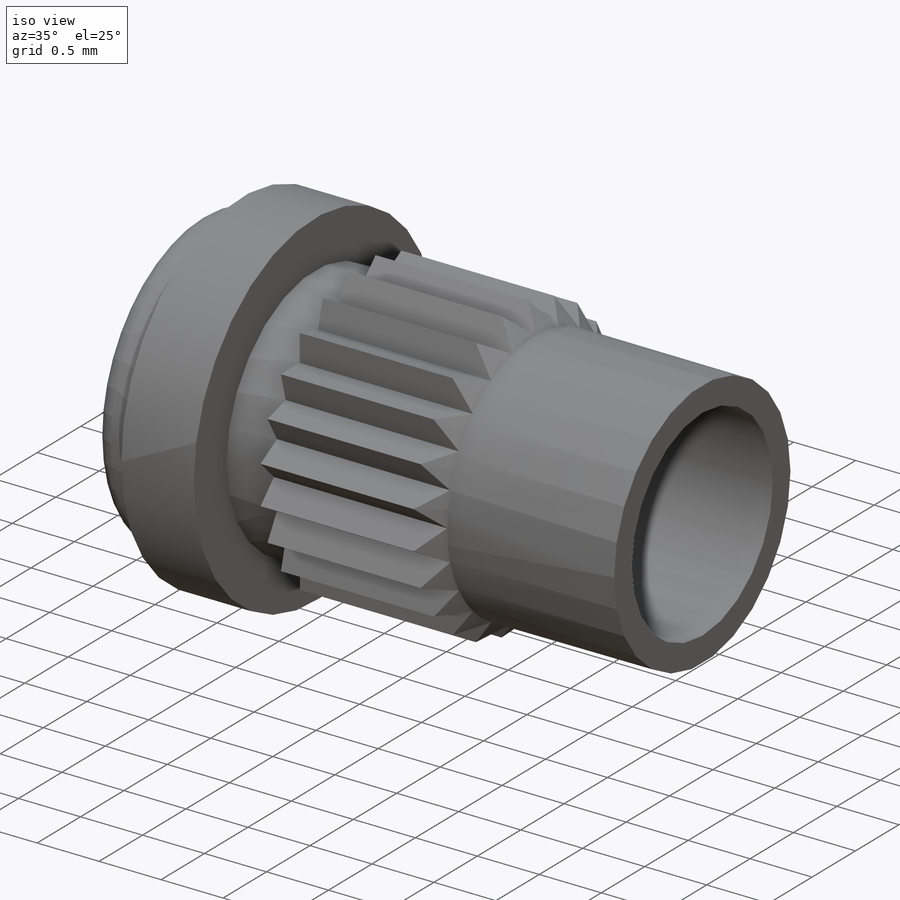
[diagram: iso view]
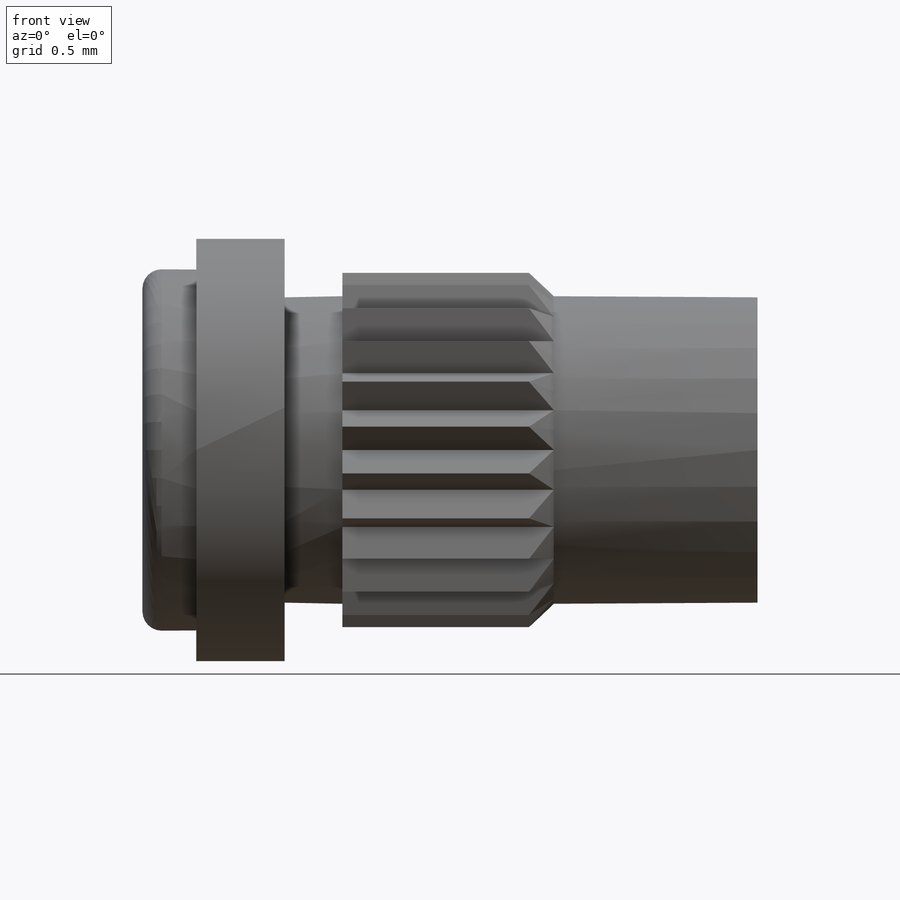
[diagram: front view]
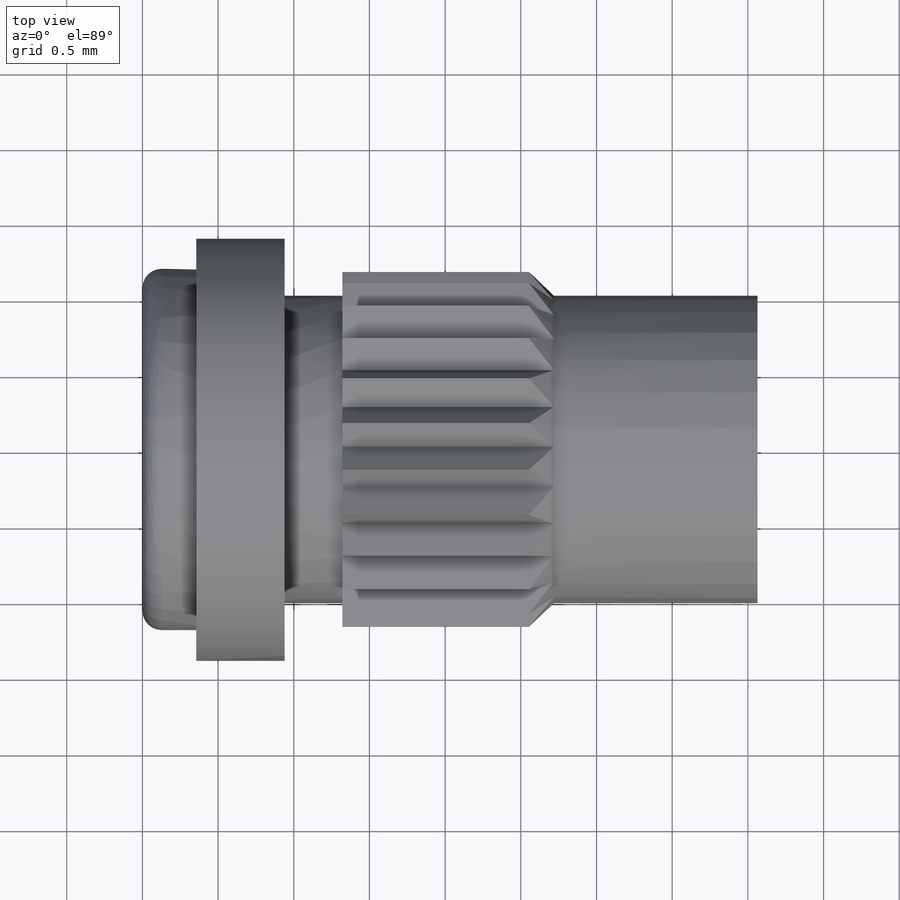
[diagram: top view]
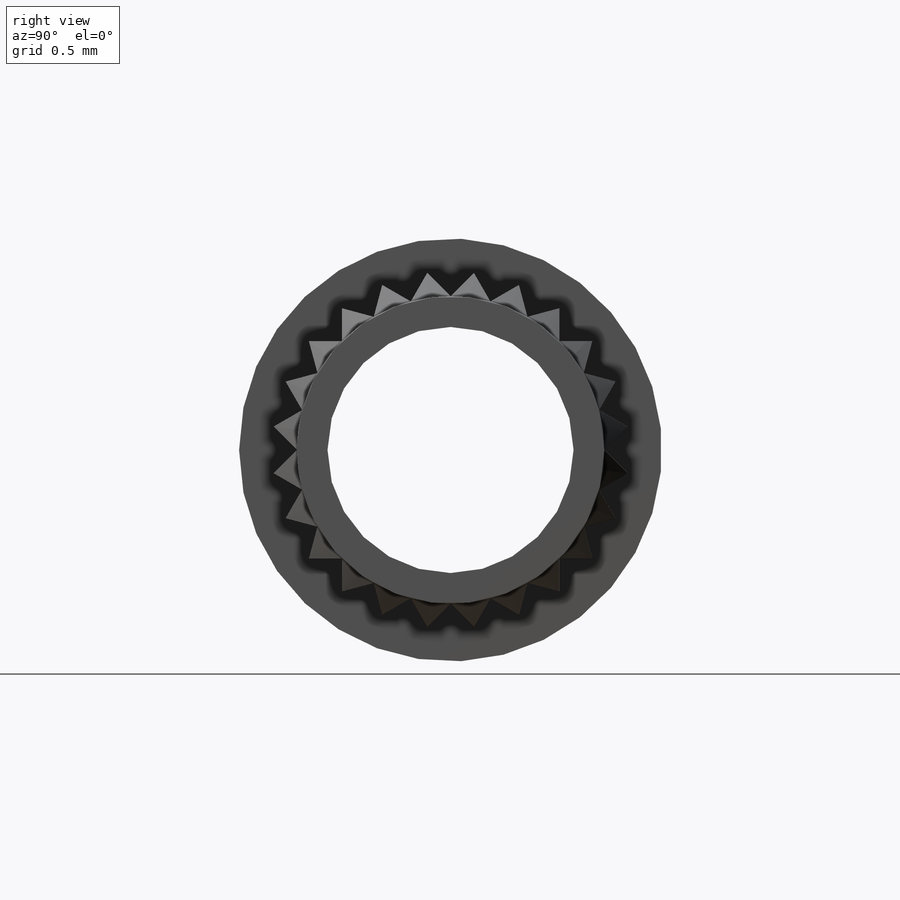
[diagram: right view]
SOLIDWORKS PART (.sldprt)
format: sldprt  version: not decoded by parser v0  size: 342,528 bytes
history: native  units: mm
features: sketch x4, extrude x2, material x1, revolve x1, hole x1, pattern_circular x1 (+13 scaffold rows collapsed)
feature tree (23):
  scaffold x13  (default folders/planes/origin — collapsed)
  material  "Brass Alloy 360"
  sketch  "Sketch1"  dims[c1.D6=0.127mm c1.D1=4.064mm c1.D2=0.9398mm c1.D3=0.5842mm c1.D4=0.381mm c1.D5=1.778mm c1.D7=1.397mm c1.D8=1.1811mm c1.D9=1.1938mm c1.D10=1.016mm c1.D11=~0.233487mm c2.D11=45.0deg]
  revolve  "RevolutionAngle1"  Angle=360deg
  hole  "Hole1"  Diameter=1.6256mm Depth=4.064mm
  sketch  "Sketch3"
  sketch  "Sketch2"  dims[c1.D1=~97.659253deg c1.D2=~82.982399deg c1.Diameter=1.6256mm c2.D2=100.0mm c2.D3=~82.982399deg c2.D4=90.0deg c3.D3=~97.716715deg c3.Depth=4.064mm c3.Drill Angle=118.0deg]
  sketch  "Sketch4"  dims[c1.D4=1.6256mm c1.D1=1.1811mm c1.D2=1.016mm c1.D3=0.3302mm c2.D4=0.1651mm]
  extrude  "ExtrusionBlind1"  [1 undecoded]
  extrude  "Extrude14"  Depth=1.397mm
  pattern_circular  "Polar Pattern1"  Count=24 Angle=360deg
decode coverage: 7 of 9 modeling features carry decoded parameters
note: ~ marks probable driven/reference dimensions
note: 1 parameter value undecoded
note: suppression state not decoded; provenance and decode notes live in map.json
